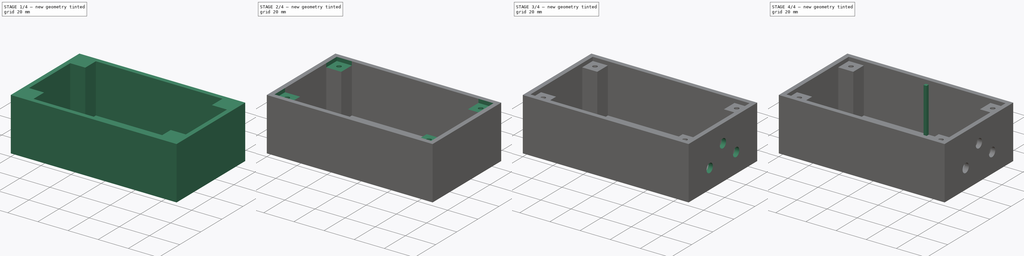
[diagram: build sequence overview — one tinted view per stage of 4, left to right]
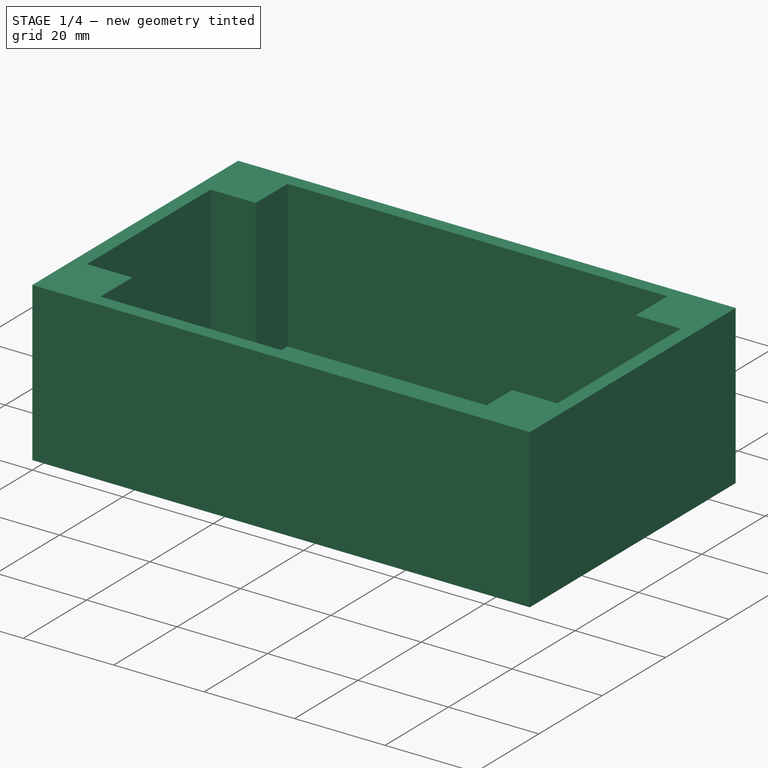
[diagram: stage 1 of 4 — iso view after this stage's code; geometry added in this stage tinted green]
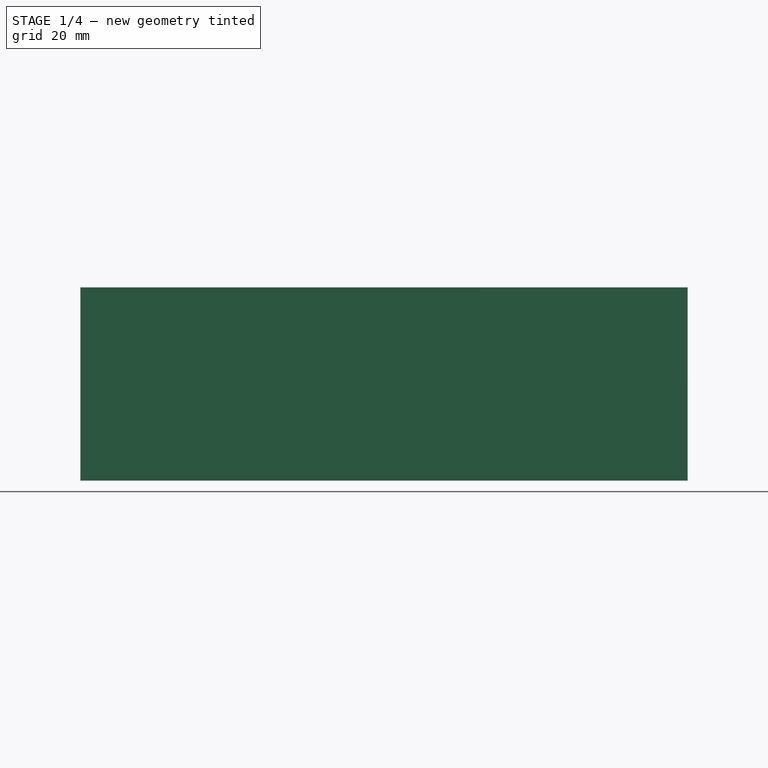
[diagram: stage 1 of 4 — front view after this stage's code; geometry added in this stage tinted green]
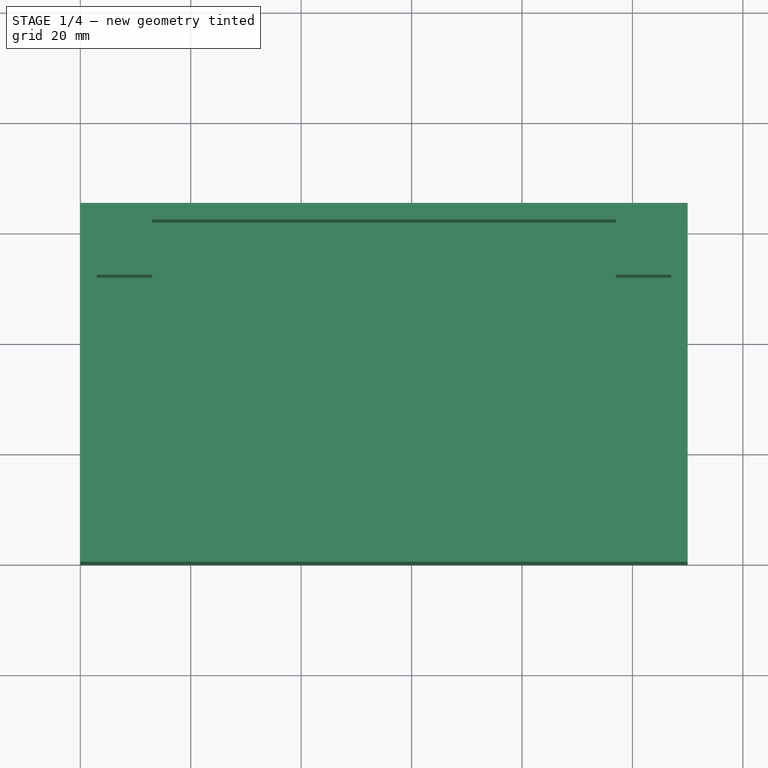
[diagram: stage 1 of 4 — top view after this stage's code; geometry added in this stage tinted green]
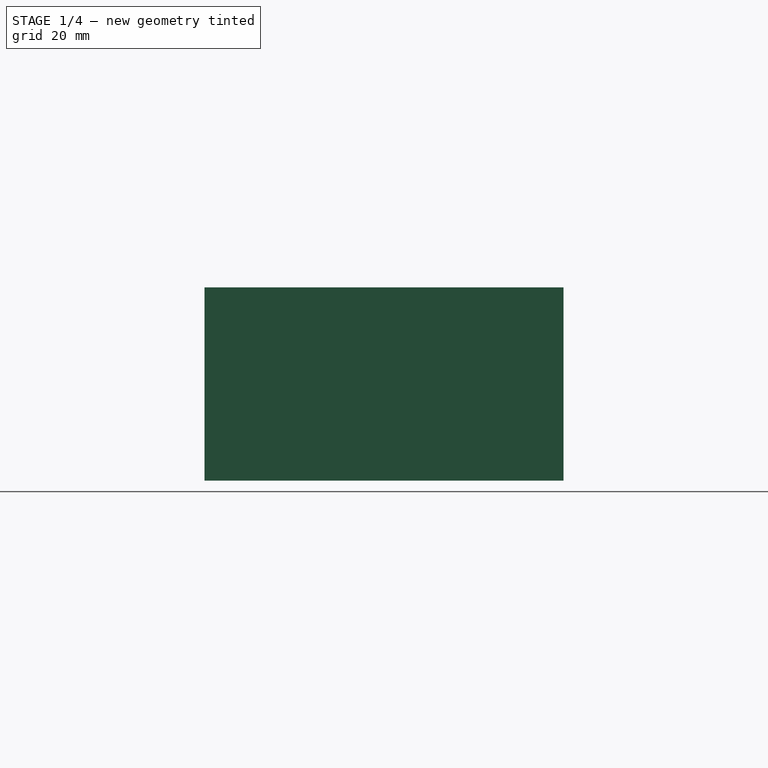
[diagram: stage 1 of 4 — right view after this stage's code; geometry added in this stage tinted green]
FCSTD DOCUMENT  (FreeCAD 0.15R4671 (Git))
Label: boxInsideCover
License: All rights reserved
LicenseURL: http://en.wikipedia.org/wiki/All_rights_reserved
objects: Sketcher::SketchObject×9, PartDesign::Pocket×5, PartDesign::Pad×4
note: 27 computed .brp shape members not serialized (recipe doc carries the construction recipe); baked Part::Feature solids carry a one-line shape summary decoded from their .brp

FEATURE [Sketcher::SketchObject] Sketch  label="Extérieur"
  sketch-geometry (4):
    g0: LineSegment StartX=0 StartY=0 StartZ=0 EndX=110 EndY=0 EndZ=0
    g1: LineSegment StartX=110 StartY=0 StartZ=0 EndX=110 EndY=65 EndZ=0
    g2: LineSegment StartX=110 StartY=65 StartZ=0 EndX=0 EndY=65 EndZ=0
    g3: LineSegment StartX=0 StartY=65 StartZ=0 EndX=0 EndY=0 EndZ=0
  constraints (12):
    c: Coincident(g0,g1)
    c: Coincident(g1,g2)
    c: Coincident(g2,g3)
    c: Coincident(g3,g0)
    c: Horizontal(g0)
    c: Horizontal(g2)
    c: Vertical(g1)
    c: Vertical(g3)
    c: Distance(g2) = 110
    c: DistanceX(g2) = 0
    c: Distance(g3) = 65
    c: DistanceY(g-1,g0) = 0
FEATURE [PartDesign::Pad] Pad  label="Corps"
  Length = 35
  Length2 = 100
  Sketch = -> Sketch
  Type = 0
FEATURE [Sketcher::SketchObject] Sketch001  label="Interieur Angles"
  Placement = pos=(0,0,35) rot=(0,0,1;0rad)
  Support = -> Pad [Face6]
  sketch-geometry (12):
    g0: LineSegment StartX=3 StartY=52.0018 StartZ=0 EndX=3 EndY=13 EndZ=0
    g1: LineSegment StartX=3 StartY=52.0018 StartZ=0 EndX=13 EndY=52.0018 EndZ=0
    g2: LineSegment StartX=13 StartY=52.0018 StartZ=0 EndX=13 EndY=62.0018 EndZ=0
    g3: LineSegment StartX=13 StartY=62.0018 StartZ=0 EndX=97 EndY=62.0018 EndZ=0
    g4: LineSegment StartX=97 StartY=62.0018 StartZ=0 EndX=97 EndY=52.0018 EndZ=0
    g5: LineSegment StartX=97 StartY=52.0018 StartZ=0 EndX=107 EndY=52.0018 EndZ=0
    g6: LineSegment StartX=107 StartY=52.0018 StartZ=0 EndX=107 EndY=13 EndZ=0
    g7: LineSegment StartX=107 StartY=13 StartZ=0 EndX=97 EndY=13 EndZ=0
    g8: LineSegment StartX=97 StartY=13 StartZ=0 EndX=97 EndY=3 EndZ=0
    g9: LineSegment StartX=97 StartY=3 StartZ=0 EndX=13 EndY=3 EndZ=0
    g10: LineSegment StartX=13 StartY=3 StartZ=0 EndX=13 EndY=13 EndZ=0
    g11: LineSegment StartX=13 StartY=13 StartZ=0 EndX=3 EndY=13 EndZ=0
  constraints (41):
    c: Vertical(g0)
    c: Coincident(g1,g0)
    c: Horizontal(g1)
    c: Vertical(g2)
    c: Coincident(g2,g3)
    c: Horizontal(g3)
    c: Coincident(g3,g4)
    c: Vertical(g4)
    c: Coincident(g4,g5)
    c: Horizontal(g5)
    c: Coincident(g5,g6)
    c: Vertical(g6)
    c: Coincident(g6,g7)
    c: Horizontal(g7)
    c: Coincident(g7,g8)
    c: Vertical(g8)
    c: Coincident(g8,g9)
    c: Horizontal(g9)
    c: Coincident(g9,g10)
    c: Vertical(g10)
    c: Coincident(g10,g11)
    c: Coincident(g11,g0)
    c: Horizontal(g11)
    c: Equal(g6,g0)
    c: Equal(g3,g9)
    c: Equal(g2,g4)
    c: Equal(g4,g5)
    c: Equal(g5,g7)
    c: Equal(g7,g8)
    c: Coincident(g1,g2)
    c: Equal(g1,g2)
    c: Equal(g2,g4)
    c: Equal(g4,g5)
    c: Equal(g5,g7)
    c: Equal(g7,g8)
    c: Equal(g8,g11)
    c: Equal(g11,g10)
    c: DistanceX(g1) = 10
    c: DistanceY(g-1,g9) = 3
    c: DistanceX(g-1,g0) = 3
    c: Distance(g3) = 84
FEATURE [PartDesign::Pocket] Pocket  label="Cavité"
  Length = 32.5
  Sketch = -> Sketch001
  Type = 0
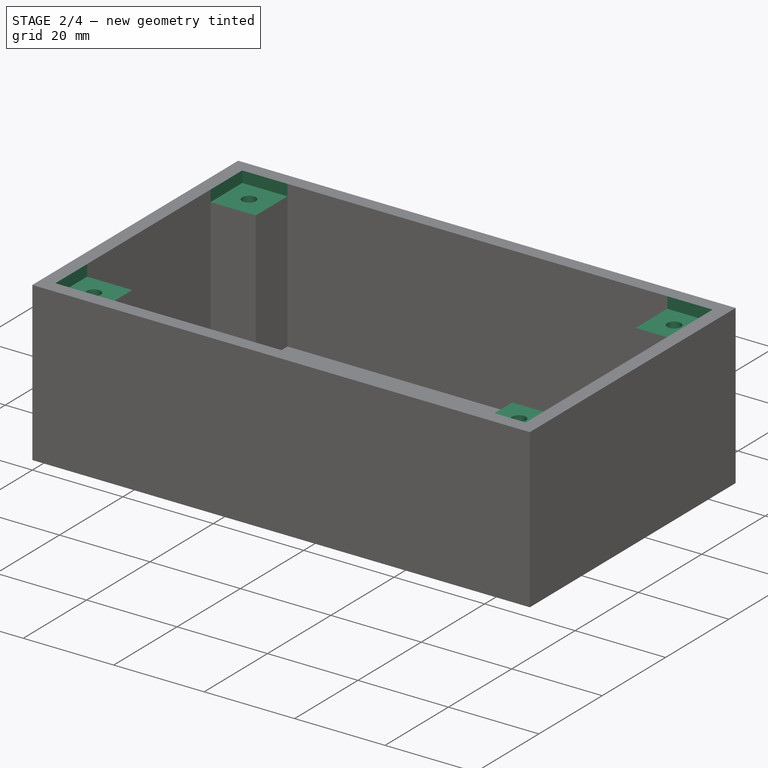
[diagram: stage 2 of 4 — iso view after this stage's code; geometry added in this stage tinted green]
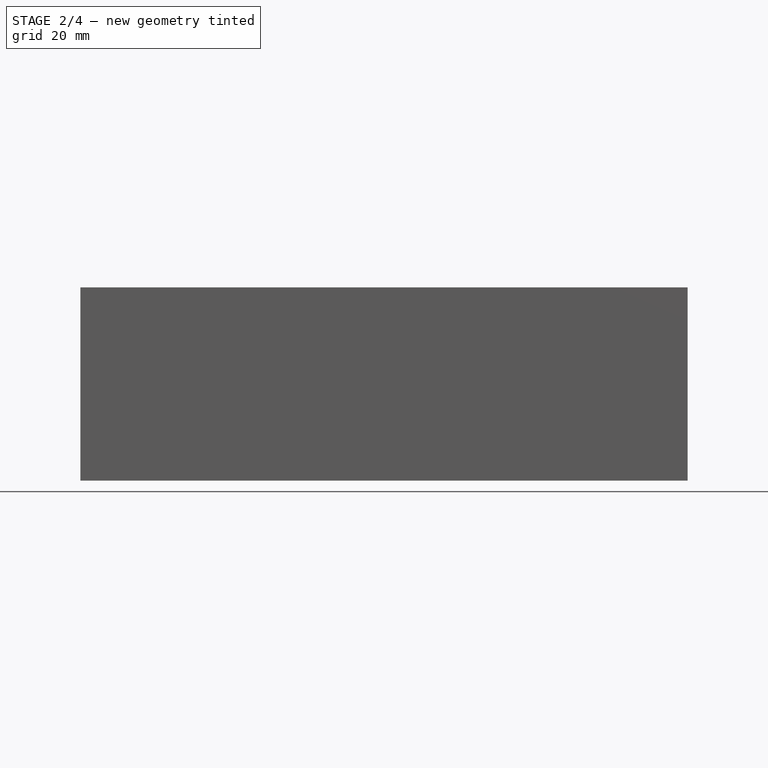
[diagram: stage 2 of 4 — front view after this stage's code; geometry added in this stage tinted green]
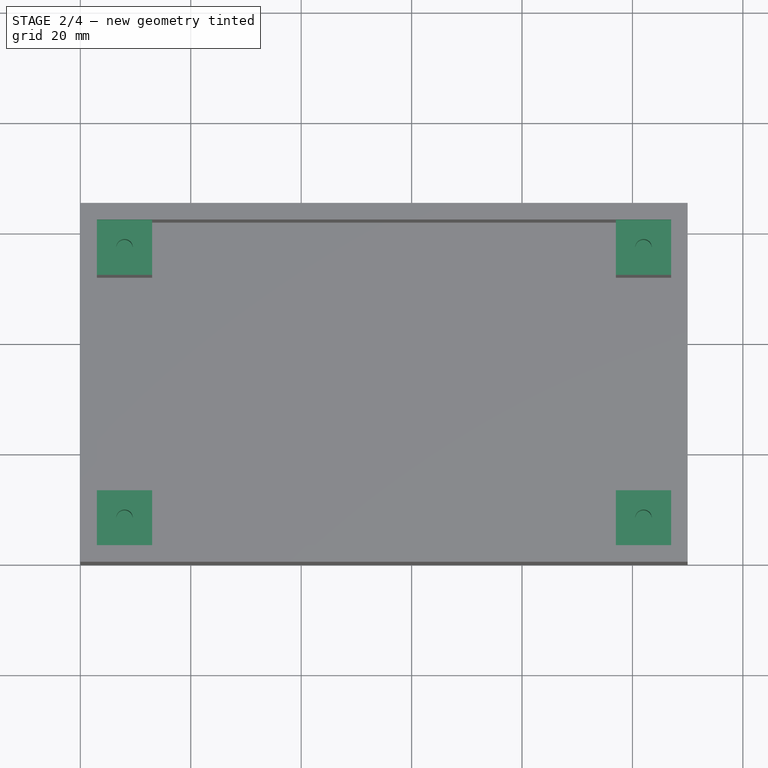
[diagram: stage 2 of 4 — top view after this stage's code; geometry added in this stage tinted green]
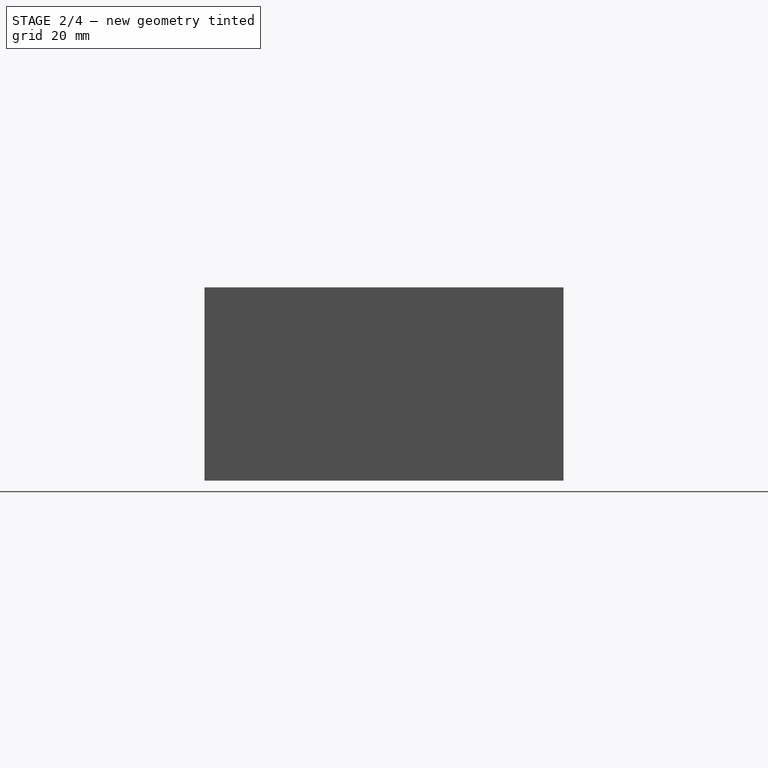
[diagram: stage 2 of 4 — right view after this stage's code; geometry added in this stage tinted green]
FEATURE [Sketcher::SketchObject] Sketch002  label="intérieur"
  Placement = pos=(0,0,35) rot=(0,0,1;0rad)
  Support = -> Pocket [Face5]
  sketch-geometry (4):
    g0: LineSegment StartX=3 StartY=62 StartZ=0 EndX=107 EndY=62 EndZ=0
    g1: LineSegment StartX=107 StartY=62 StartZ=0 EndX=107 EndY=3 EndZ=0
    g2: LineSegment StartX=107 StartY=3 StartZ=0 EndX=3 EndY=3 EndZ=0
    g3: LineSegment StartX=3 StartY=3 StartZ=0 EndX=3 EndY=62 EndZ=0
  constraints (14):
    c: Coincident(g0,g1)
    c: Coincident(g1,g2)
    c: Coincident(g2,g3)
    c: Coincident(g3,g0)
    c: Horizontal(g0)
    c: Horizontal(g2)
    c: Vertical(g1)
    c: Vertical(g3)
    c: Equal(g0,g2)
    c: Equal(g3,g1)
    c: DistanceX(g-1,g2) = 3
    c: DistanceY(g-1,g2) = 3
    c: Distance(g3) = 59
    c: Distance(g0) = 104
FEATURE [PartDesign::Pocket] Pocket001  label="Cavité couvercle"
  Length = 2.5
  Sketch = -> Sketch002
  Type = 0
FEATURE [Sketcher::SketchObject] Sketch003  label="Trous"
  Placement = pos=(0,0,32.5) rot=(0,0,1;0rad)
  Support = -> Pocket001 [Face22]
  sketch-geometry (4):
    g0: Circle CenterX=8 CenterY=57 CenterZ=0 NormalX=0 NormalY=0 NormalZ=1 Radius=1.5
    g1: Circle CenterX=102 CenterY=57 CenterZ=0 NormalX=0 NormalY=0 NormalZ=1 Radius=1.5
    g2: Circle CenterX=102 CenterY=8 CenterZ=0 NormalX=0 NormalY=0 NormalZ=1 Radius=1.5
    g3: Circle CenterX=8 CenterY=8 CenterZ=0 NormalX=0 NormalY=0 NormalZ=1 Radius=1.5
  constraints (12):
    c: DistanceX(g-1,g0) = 8
    c: DistanceY(g-1,g0) = 57
    c: Radius(g0) = 1.5
    c: Equal(g1,g0)
    c: DistanceX(g-1,g1) = 102
    c: DistanceY(g-1,g1) = 57
    c: Equal(g2,g0)
    c: DistanceY(g-1,g2) = 8
    c: DistanceX(g-1,g2) = 102
    c: Equal(g3,g0)
    c: DistanceX(g-1,g3) = 8
    c: DistanceY(g-1,g3) = 8
FEATURE [PartDesign::Pocket] Pocket002  label="Cavités trous"
  Length = 10
  Sketch = -> Sketch003
  Type = 0
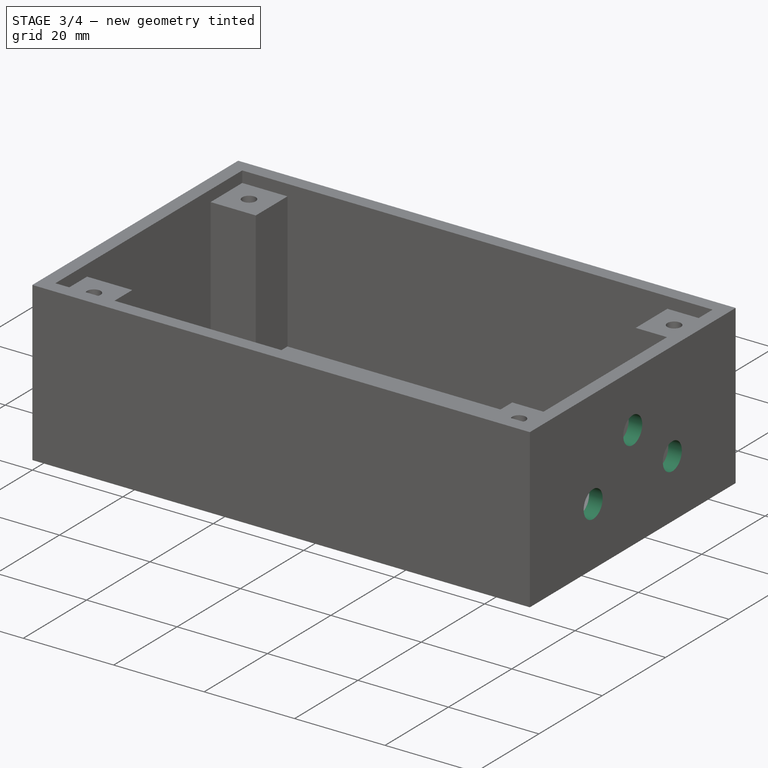
[diagram: stage 3 of 4 — iso view after this stage's code; geometry added in this stage tinted green]
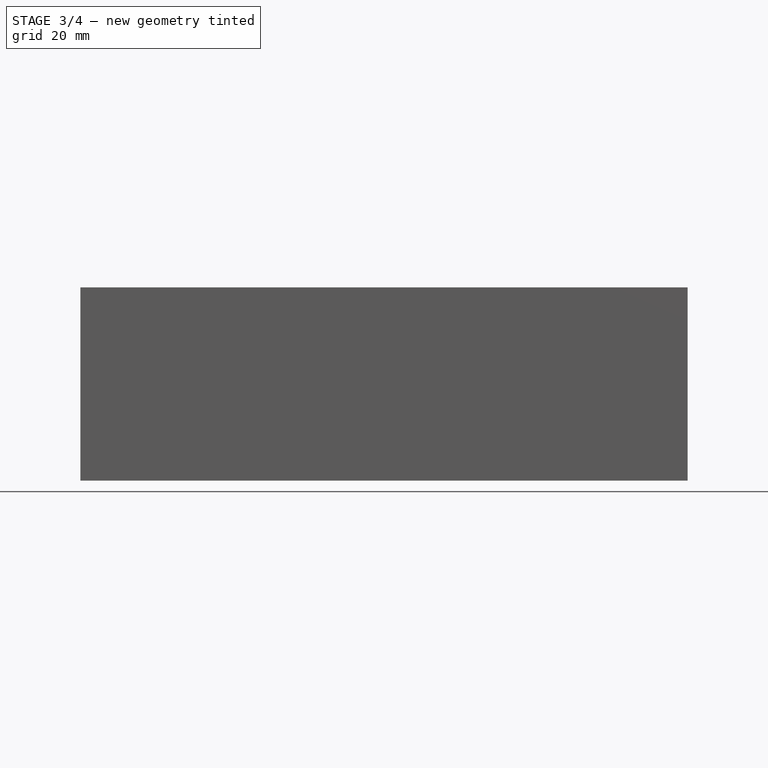
[diagram: stage 3 of 4 — front view after this stage's code; geometry added in this stage tinted green]
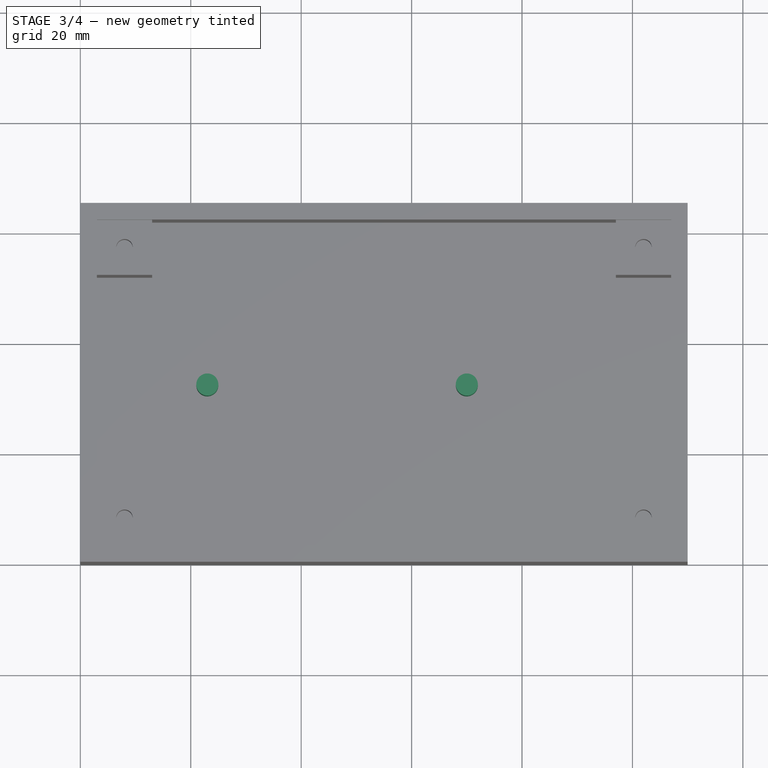
[diagram: stage 3 of 4 — top view after this stage's code; geometry added in this stage tinted green]
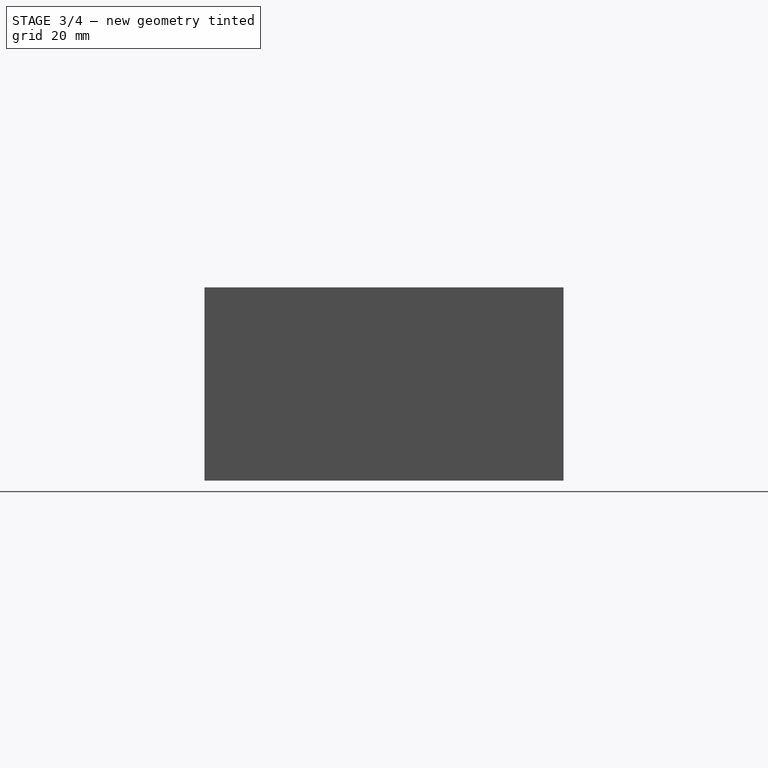
[diagram: stage 3 of 4 — right view after this stage's code; geometry added in this stage tinted green]
FEATURE [Sketcher::SketchObject] Sketch007  label="Dessin Trous HT"
  Placement = pos=(110,0,0) rot=(0.57735,0.57735,0.57735;2.0944rad)
  Support = -> Pocket002 [Face3]
  sketch-geometry (3):
    g0: Circle CenterX=20 CenterY=13 CenterZ=0 NormalX=0 NormalY=0 NormalZ=1 Radius=3
    g1: Circle CenterX=32.5 CenterY=23 CenterZ=0 NormalX=0 NormalY=0 NormalZ=1 Radius=3
    g2: Circle CenterX=45 CenterY=13 CenterZ=0 NormalX=0 NormalY=0 NormalZ=1 Radius=3
  constraints (9):
    c: Radius(g0) = 3
    c: DistanceY(g-1,g0) = 13
    c: DistanceX(g-1,g0) = 20
    c: Equal(g1,g0)
    c: Equal(g2,g0)
    c: DistanceY(g2,g0) = 0
    c: DistanceX(g0,g2) = 25
    c: DistanceY(g1,g0) = -10
    c: DistanceX(g0,g1) = 12.5
FEATURE [PartDesign::Pocket] Pocket003  label="Trous HT"
  Length = 5
  Sketch = -> Sketch007
  Type = 0
FEATURE [Sketcher::SketchObject] Sketch006  label="Dessin trou BT"
  Placement = pos=(0,0,0) rot=(0.57735,-0.57735,-0.57735;2.0944rad)
  Support = -> Pocket003 [Face2]
  sketch-geometry (1):
    g0: Circle CenterX=-32.5 CenterY=15 CenterZ=0 NormalX=0 NormalY=0 NormalZ=1 Radius=2
  constraints (3):
    c: Radius(g0) = 2
    c: DistanceX(g-1,g0) = -32.5
    c: DistanceY(g-1,g0) = 15
FEATURE [PartDesign::Pocket] Pocket005  label="Trou BT"
  Length = 5
  Sketch = -> Sketch006
  Type = 0
FEATURE [Sketcher::SketchObject] Sketch005  label="Dessin picots"
  Placement = pos=(0,0,0) rot=(1,0,0;3.14159rad)
  Support = -> Pocket005 [Face4]
  sketch-geometry (2):
    g0: Circle CenterX=23 CenterY=-32.5 CenterZ=0 NormalX=0 NormalY=0 NormalZ=1 Radius=2
    g1: Circle CenterX=70 CenterY=-32.5 CenterZ=0 NormalX=0 NormalY=0 NormalZ=1 Radius=2
  constraints (6):
    c: Radius(g0) = 2
    c: DistanceX(g-1,g0) = 23
    c: DistanceY(g-1,g0) = -32.5
    c: Equal(g1,g0)
    c: DistanceX(g0,g1) = 47
    c: DistanceY(g0,g1) = 0
FEATURE [PartDesign::Pad] Pad001
  Length = 12.5
  Length2 = 100
  Reversed = true
  Sketch = -> Sketch005
  Type = 0
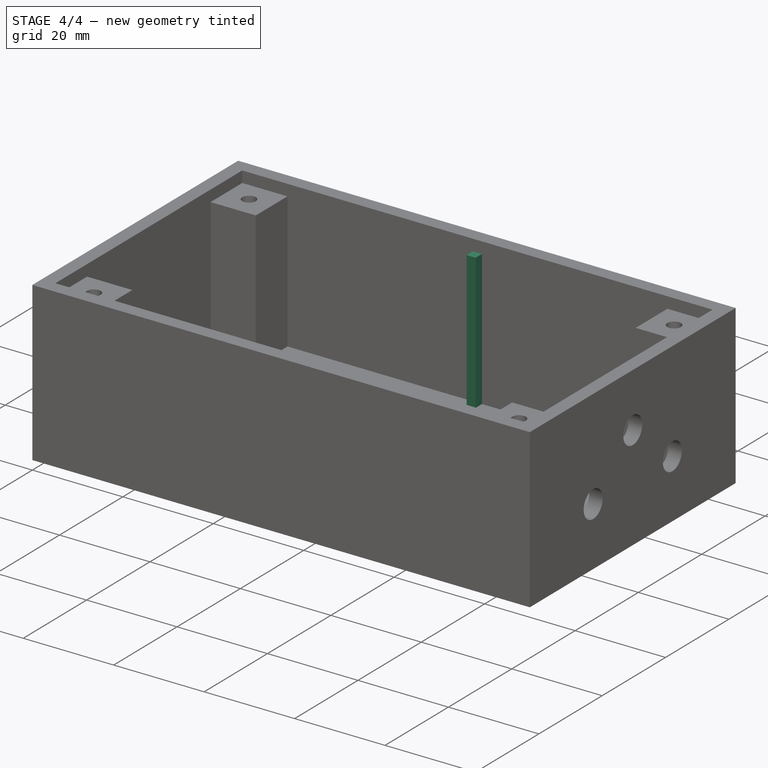
[diagram: stage 4 of 4 — iso view after this stage's code; geometry added in this stage tinted green]
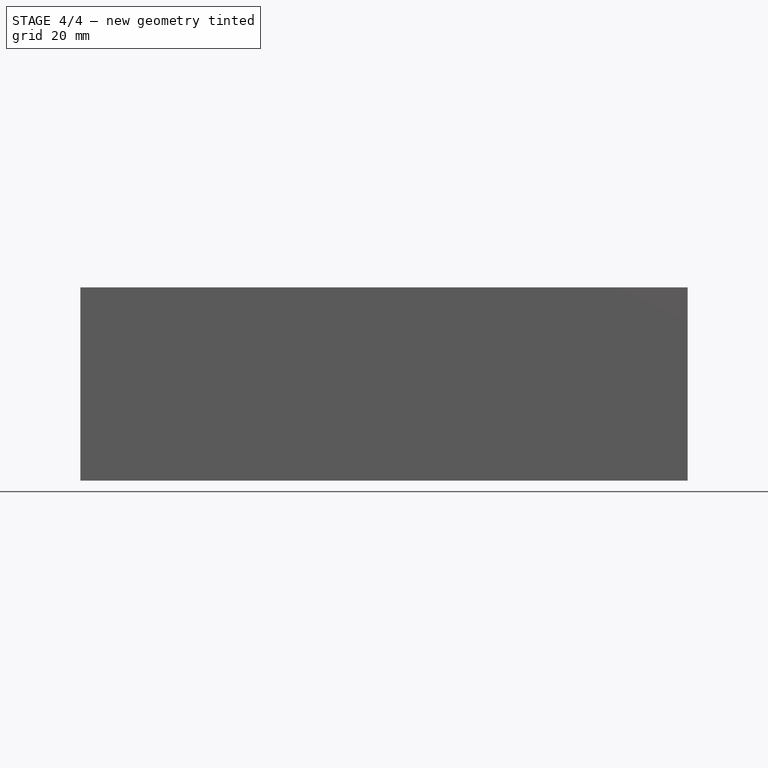
[diagram: stage 4 of 4 — front view after this stage's code; geometry added in this stage tinted green]
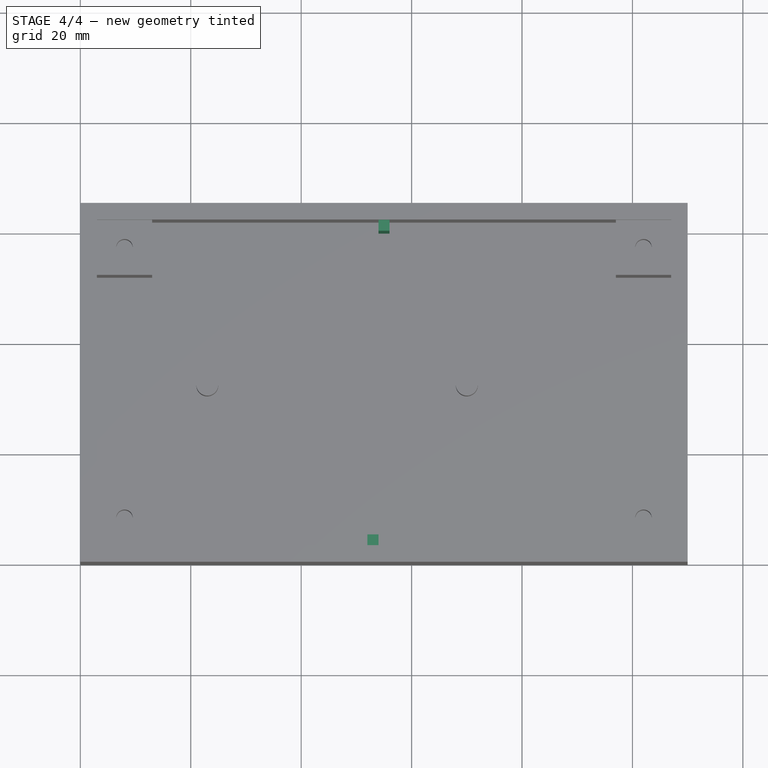
[diagram: stage 4 of 4 — top view after this stage's code; geometry added in this stage tinted green]
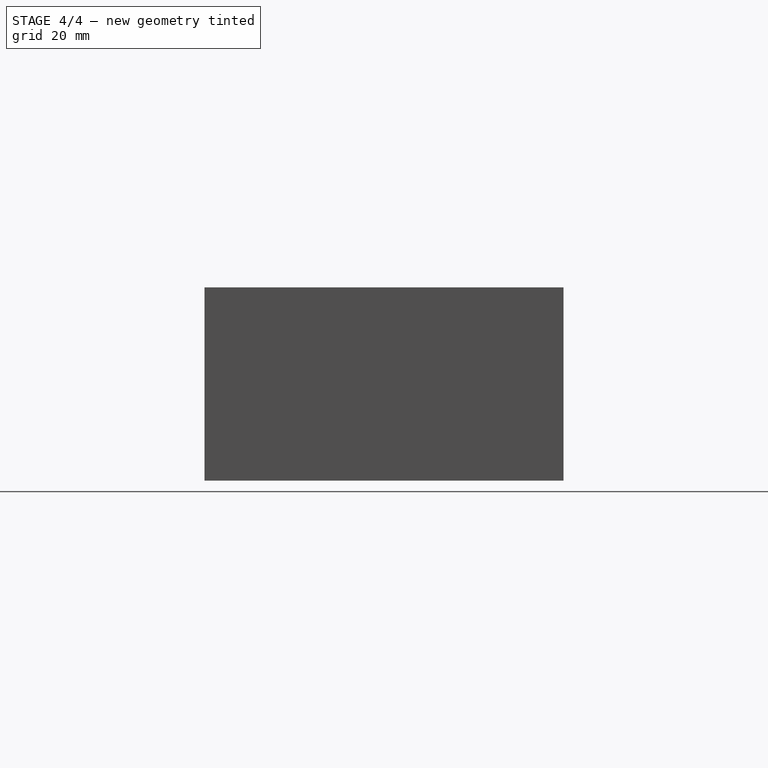
[diagram: stage 4 of 4 — right view after this stage's code; geometry added in this stage tinted green]
FEATURE [Sketcher::SketchObject] Sketch008  label="Dessin renfort face"
  Placement = pos=(0,0,0) rot=(1,0,0;1.5708rad)
  Support = -> Pad001 [Face1]
  sketch-geometry (4):
    g0: LineSegment StartX=54 StartY=32.5 StartZ=0 EndX=52 EndY=32.5 EndZ=0
    g1: LineSegment StartX=52 StartY=32.5 StartZ=0 EndX=52 EndY=0 EndZ=0
    g2: LineSegment StartX=52 StartY=0 StartZ=0 EndX=54 EndY=0 EndZ=0
    g3: LineSegment StartX=54 StartY=0 StartZ=0 EndX=54 EndY=32.5 EndZ=0
  constraints (12):
    c: Coincident(g0,g1)
    c: Coincident(g1,g2)
    c: Coincident(g2,g3)
    c: Coincident(g3,g0)
    c: Horizontal(g0)
    c: Horizontal(g2)
    c: Vertical(g1)
    c: Vertical(g3)
    c: DistanceX(g-1,g2) = 54
    c: DistanceY(g-1,g1) = 0
    c: DistanceX(g0) = -2
    c: Distance(g1) = 32.5
FEATURE [PartDesign::Pad] Pad002
  Length = 5
  Length2 = 100
  Reversed = true
  Sketch = -> Sketch008
  Type = 0
FEATURE [Sketcher::SketchObject] Sketch009  label="Dessin renfort dos"
  Placement = pos=(0,65,0) rot=(0,0.707107,0.707107;3.14159rad)
  Support = -> Pad002 [Face5]
  sketch-geometry (4):
    g0: LineSegment StartX=-54 StartY=32.5 StartZ=0 EndX=-56 EndY=32.5 EndZ=0
    g1: LineSegment StartX=-56 StartY=32.5 StartZ=0 EndX=-56 EndY=0 EndZ=0
    g2: LineSegment StartX=-56 StartY=0 StartZ=0 EndX=-54 EndY=0 EndZ=0
    g3: LineSegment StartX=-54 StartY=0 StartZ=0 EndX=-54 EndY=32.5 EndZ=0
  constraints (12):
    c: Coincident(g0,g1)
    c: Coincident(g1,g2)
    c: Coincident(g2,g3)
    c: Coincident(g3,g0)
    c: Horizontal(g0)
    c: Horizontal(g2)
    c: Vertical(g1)
    c: Vertical(g3)
    c: DistanceX(g-1,g2) = -54
    c: DistanceY(g-1,g1) = 0
    c: DistanceX(g0) = -2
    c: Distance(g1) = 32.5
FEATURE [PartDesign::Pad] Pad003
  Length = 5
  Length2 = 100
  Reversed = true
  Sketch = -> Sketch009
  Type = 0
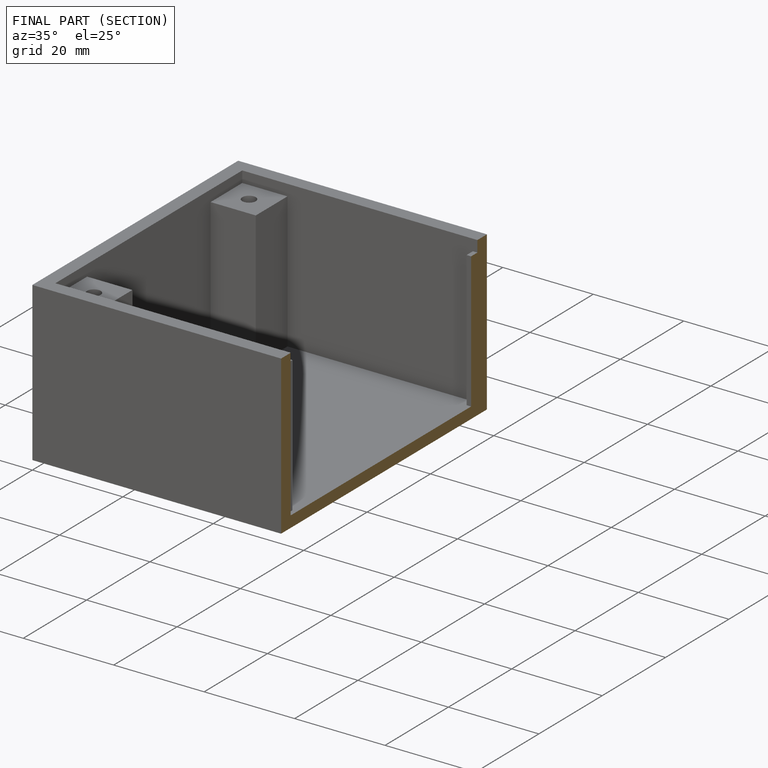
[diagram: finished part — half-section view (interior)]
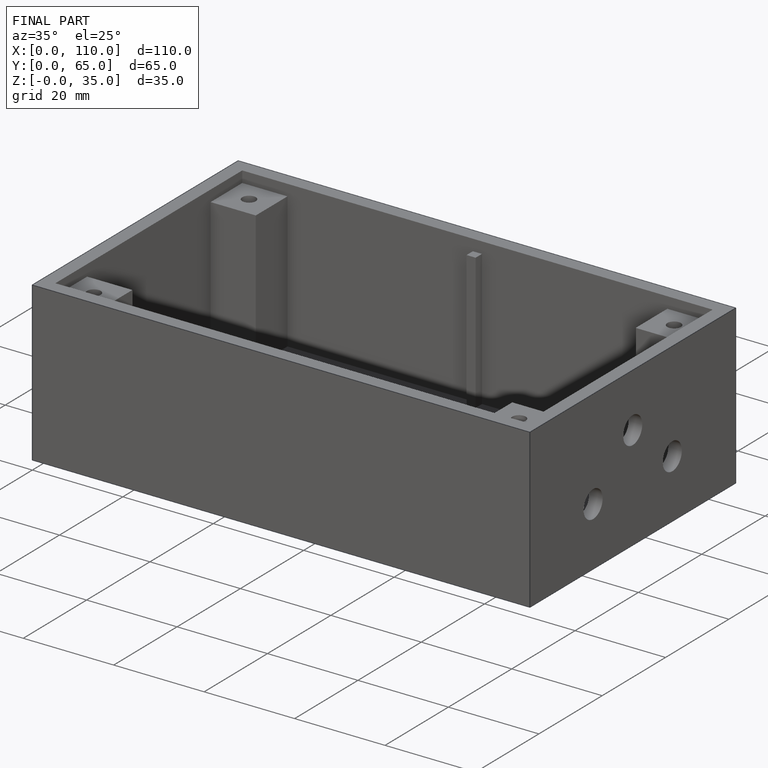
[diagram: finished part — iso view with bounding-box wireframe]
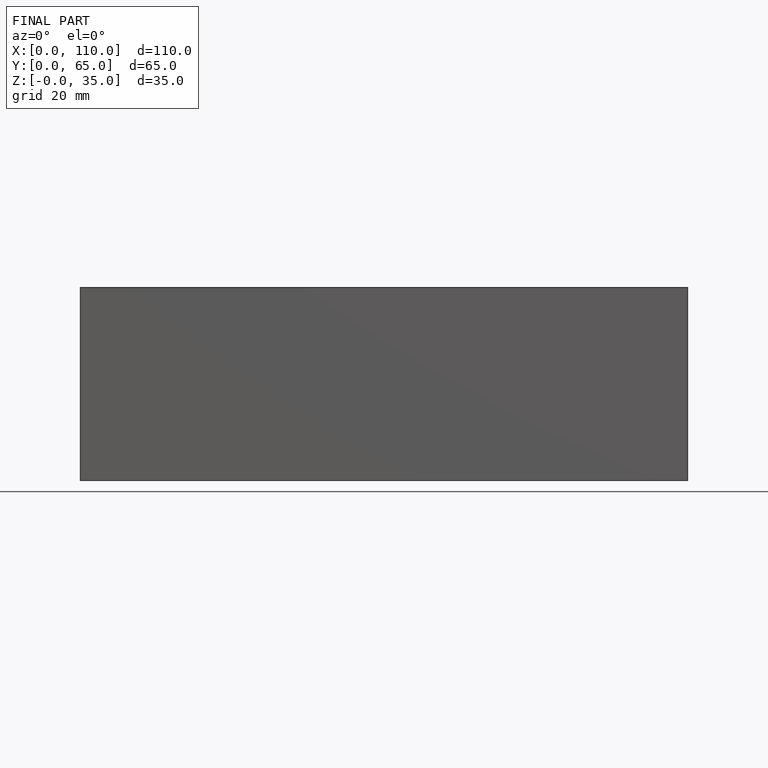
[diagram: finished part — front view with bounding-box wireframe]
